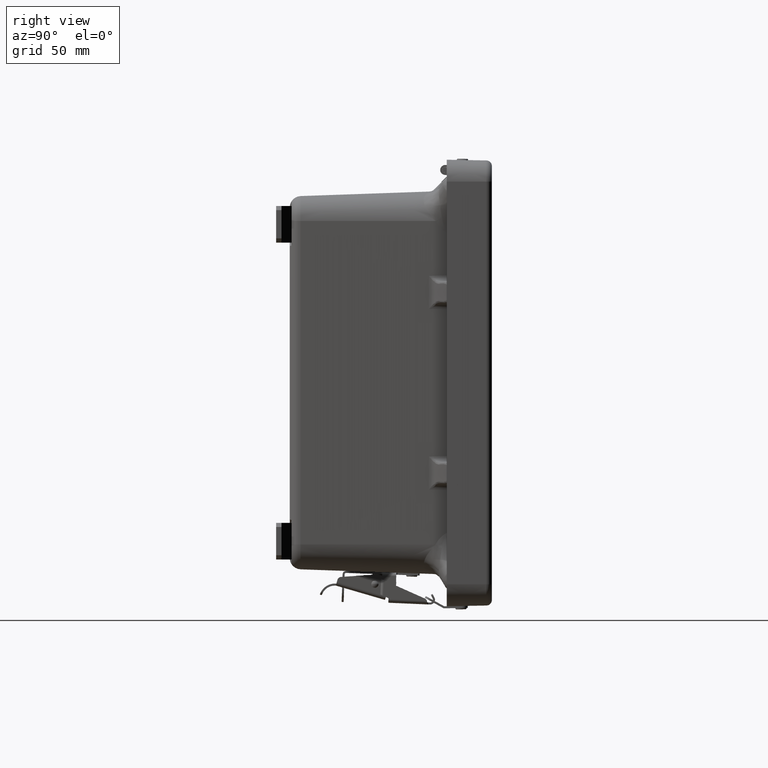
[diagram: clean part render]
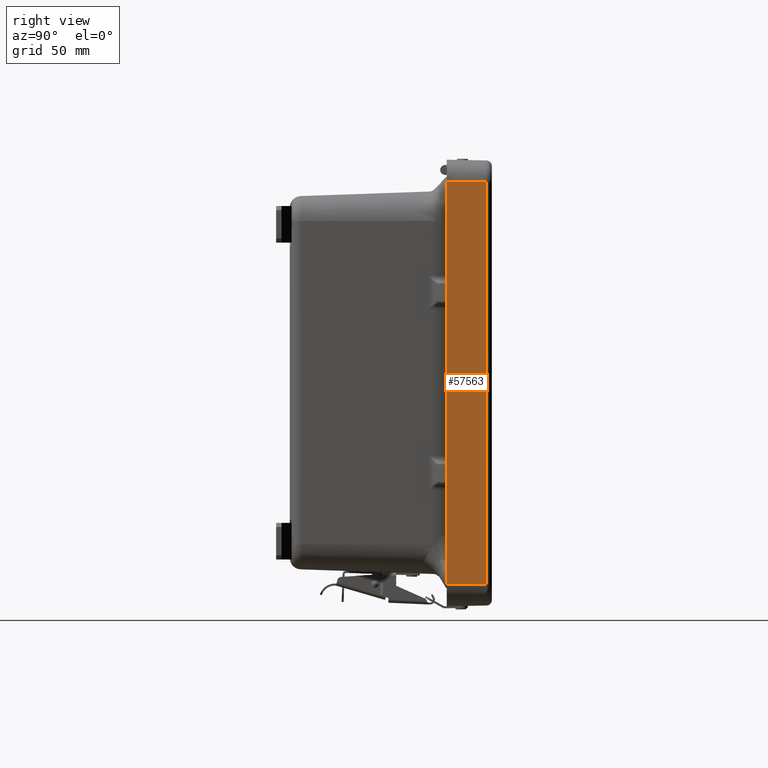
[diagram: same view with one face highlighted and labeled with its STEP entity id]
A machine part, right view. The second image highlights one B-rep face of the part: STEP entity #57563.
In plain terms, the highlighted planar face has unit normal (0.9998, 0.0175, 0).
Its self-contained STEP definition (entity closure, byte-faithful):
#644 = EDGE_CURVE ( 'NONE', #52172, #47885, #8750, .T. ) ;
#3479 = CARTESIAN_POINT ( 'NONE',  ( -5.886455064928217200, 1.000000000000000200, -4.462000000000000600 ) ) ;
#7295 = PLANE ( 'NONE',  #24404 ) ;
#7481 = ORIENTED_EDGE ( 'NONE', *, *, #66532, .F. ) ;
#8750 = LINE ( 'NONE', #63274, #63637 ) ;
#14730 = VECTOR ( 'NONE', #57251, 39.37007874015748100 ) ;
#14916 = CARTESIAN_POINT ( 'NONE',  ( -5.868999999999999800, 0.0000000000000000000, 4.462000000000000600 ) ) ;
#16359 = FACE_OUTER_BOUND ( 'NONE', #67535, .T. ) ;
#16923 = VERTEX_POINT ( 'NONE', #45561 ) ;
#17916 = ORIENTED_EDGE ( 'NONE', *, *, #644, .T. ) ;
#18841 = CARTESIAN_POINT ( 'NONE',  ( -5.886455064928217200, 1.000000000000000200, -4.462000000000000600 ) ) ;
#18847 = VECTOR ( 'NONE', #20417, 39.37007874015748100 ) ;
#20417 = DIRECTION ( 'NONE',  ( 0.01745240643728354600, -0.9998476951563912700, -0.0000000000000000000 ) ) ;
#24404 = AXIS2_PLACEMENT_3D ( 'NONE', #29339, #67677, #34834 ) ;
#24595 = CARTESIAN_POINT ( 'NONE',  ( -5.871143804005089200, 0.1228184491953397700, -4.462000000000000600 ) ) ;
#29339 = CARTESIAN_POINT ( 'NONE',  ( -5.868999999999999800, 0.0000000000000000000, -4.462000000000000600 ) ) ;
#31572 = CARTESIAN_POINT ( 'NONE',  ( -5.871143804005087400, 0.1228184491953397700, 4.462000000000000600 ) ) ;
#33479 = LINE ( 'NONE', #14916, #18847 ) ;
#34083 = LINE ( 'NONE', #55795, #61538 ) ;
#34834 = DIRECTION ( 'NONE',  ( 0.01745240643728354300, -0.9998476951563912700, 0.0000000000000000000 ) ) ;
#39733 = DIRECTION ( 'NONE',  ( 0.01745240643728354600, -0.9998476951563912700, -0.0000000000000000000 ) ) ;
#42082 = ORIENTED_EDGE ( 'NONE', *, *, #64850, .F. ) ;
#42458 = VERTEX_POINT ( 'NONE', #3479 ) ;
#45561 = CARTESIAN_POINT ( 'NONE',  ( -5.886455064928217200, 1.000000000000000200, 4.462000000000000600 ) ) ;
#47885 = VERTEX_POINT ( 'NONE', #31572 ) ;
#52172 = VERTEX_POINT ( 'NONE', #24595 ) ;
#55795 = CARTESIAN_POINT ( 'NONE',  ( -5.868999999999999800, 0.0000000000000000000, -4.462000000000000600 ) ) ;
#57251 = DIRECTION ( 'NONE',  ( -0.0000000000000000000, -0.0000000000000000000, 1.000000000000000000 ) ) ;
#57563 = ADVANCED_FACE ( 'NONE', ( #16359 ), #7295, .T. ) ;
#60239 = LINE ( 'NONE', #18841, #14730 ) ;
#60559 = EDGE_CURVE ( 'NONE', #42458, #52172, #34083, .T. ) ;
#61538 = VECTOR ( 'NONE', #39733, 39.37007874015748100 ) ;
#63274 = CARTESIAN_POINT ( 'NONE',  ( -5.871143804005087400, 0.1228184491953397700, 4.462000000000000600 ) ) ;
#63637 = VECTOR ( 'NONE', #68801, 39.37007874015748100 ) ;
#64850 = EDGE_CURVE ( 'NONE', #42458, #16923, #60239, .T. ) ;
#64976 = ORIENTED_EDGE ( 'NONE', *, *, #60559, .T. ) ;
#66532 = EDGE_CURVE ( 'NONE', #16923, #47885, #33479, .T. ) ;
#67535 = EDGE_LOOP ( 'NONE', ( #64976, #17916, #7481, #42082 ) ) ;
#67677 = DIRECTION ( 'NONE',  ( -0.9998476951563912700, -0.01745240643728354300, 0.0000000000000000000 ) ) ;
#68801 = DIRECTION ( 'NONE',  ( 0.0000000000000000000, 0.0000000000000000000, 1.000000000000000000 ) ) ;